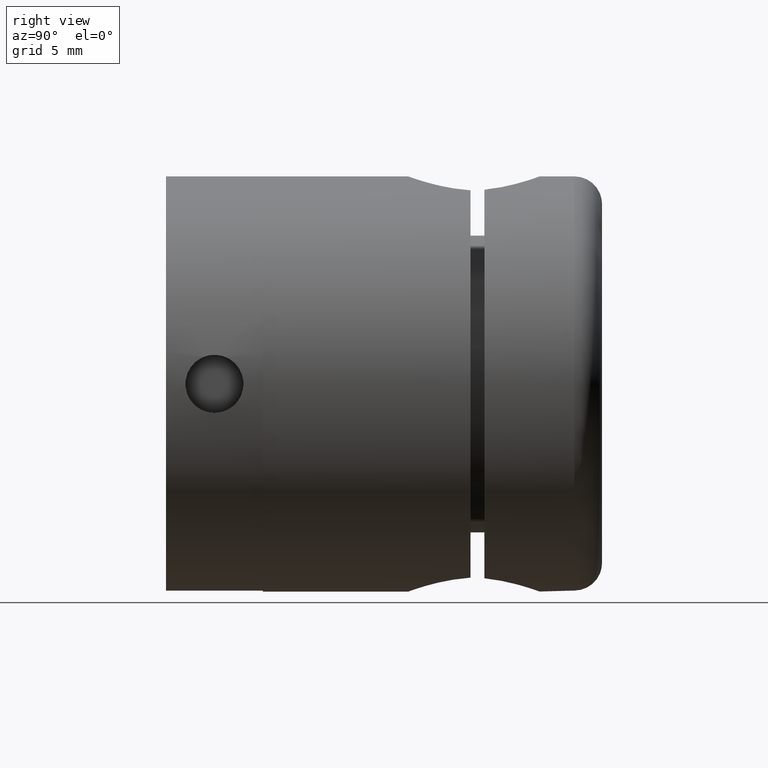
[diagram: clean part render]
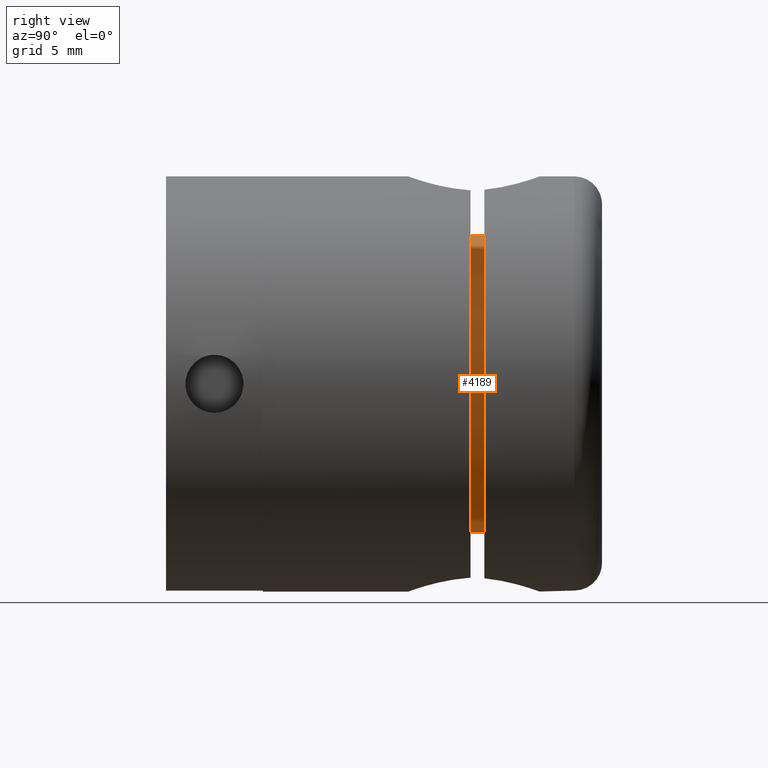
[diagram: same view with one face highlighted and labeled with its STEP entity id]
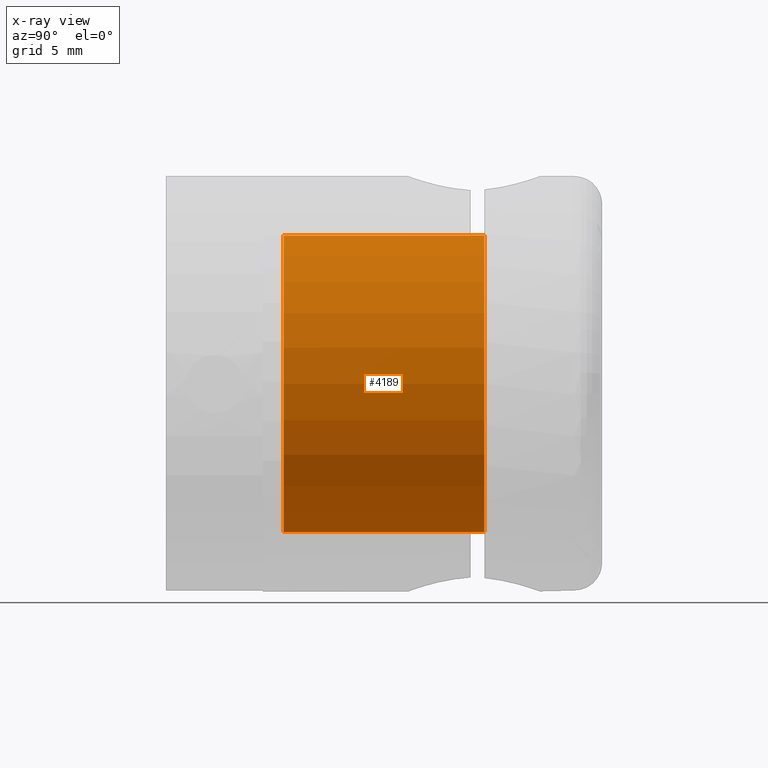
[diagram: x-ray of the same camera — body ghosted, the highlighted face saturated]
A machine part, right view. The second image highlights one B-rep face of the part: STEP entity #4189.
The next image is the same camera in x-ray: the body ghosted, the highlighted face saturated — about 0% of this face is hidden behind the body in this view.
In plain terms, the highlighted cylindrical surface (partial cylindrical patch) has radius 12.05 mm, axis along (-0, 1, 0).
Its self-contained STEP definition (entity closure, byte-faithful):
#166 = CARTESIAN_POINT ( 'NONE',  ( 5.499999999999999100, 24.50000000000000700, -10.72159036710506000 ) ) ;
#1019 = CYLINDRICAL_SURFACE ( 'NONE', #7034, 12.05000000000000100 ) ;
#1659 = VERTEX_POINT ( 'NONE', #11152 ) ;
#2071 = ORIENTED_EDGE ( 'NONE', *, *, #10617, .T. ) ;
#2279 = VERTEX_POINT ( 'NONE', #3941 ) ;
#2794 = CIRCLE ( 'NONE', #6835, 12.05000000000000100 ) ;
#3223 = DIRECTION ( 'NONE',  ( 0.0000000000000000000, 1.000000000000000000, 0.0000000000000000000 ) ) ;
#3478 = DIRECTION ( 'NONE',  ( -0.0000000000000000000, -1.000000000000000000, -0.0000000000000000000 ) ) ;
#3941 = CARTESIAN_POINT ( 'NONE',  ( 5.500000000000000900, 10.00000000000000000, 10.72159036710506000 ) ) ;
#4189 = ADVANCED_FACE ( 'NONE', ( #16816 ), #1019, .T. ) ;
#5064 = DIRECTION ( 'NONE',  ( 0.0000000000000000000, 0.0000000000000000000, -1.000000000000000000 ) ) ;
#5441 = LINE ( 'NONE', #7135, #12909 ) ;
#5533 = ORIENTED_EDGE ( 'NONE', *, *, #11455, .T. ) ;
#5771 = DIRECTION ( 'NONE',  ( 0.0000000000000000000, 1.000000000000000000, 0.0000000000000000000 ) ) ;
#6006 = VERTEX_POINT ( 'NONE', #15273 ) ;
#6357 = EDGE_CURVE ( 'NONE', #6006, #2279, #13795, .T. ) ;
#6641 = CARTESIAN_POINT ( 'NONE',  ( 5.500000000000000900, 25.50000000000000400, 10.72159036710506000 ) ) ;
#6835 = AXIS2_PLACEMENT_3D ( 'NONE', #8572, #5771, #13891 ) ;
#7034 = AXIS2_PLACEMENT_3D ( 'NONE', #10326, #3478, #5064 ) ;
#7135 = CARTESIAN_POINT ( 'NONE',  ( 5.499999999999999100, 25.50000000000000400, -10.72159036710506000 ) ) ;
#7290 = ORIENTED_EDGE ( 'NONE', *, *, #6357, .T. ) ;
#8132 = ORIENTED_EDGE ( 'NONE', *, *, #14645, .T. ) ;
#8491 = DIRECTION ( 'NONE',  ( 0.0000000000000000000, 0.0000000000000000000, 1.000000000000000000 ) ) ;
#8572 = CARTESIAN_POINT ( 'NONE',  ( 0.0000000000000000000, 10.00000000000000000, 0.0000000000000000000 ) ) ;
#9571 = VERTEX_POINT ( 'NONE', #166 ) ;
#9728 = AXIS2_PLACEMENT_3D ( 'NONE', #16319, #13826, #8491 ) ;
#9849 = VECTOR ( 'NONE', #14625, 1000.000000000000000 ) ;
#10326 = CARTESIAN_POINT ( 'NONE',  ( 0.0000000000000000000, 25.50000000000000400, 0.0000000000000000000 ) ) ;
#10617 = EDGE_CURVE ( 'NONE', #2279, #1659, #2794, .T. ) ;
#11152 = CARTESIAN_POINT ( 'NONE',  ( 5.499999999999999100, 10.00000000000000000, -10.72159036710506000 ) ) ;
#11455 = EDGE_CURVE ( 'NONE', #9571, #6006, #16883, .T. ) ;
#12652 = EDGE_LOOP ( 'NONE', ( #8132, #5533, #7290, #2071 ) ) ;
#12909 = VECTOR ( 'NONE', #3223, 1000.000000000000000 ) ;
#13795 = LINE ( 'NONE', #6641, #9849 ) ;
#13826 = DIRECTION ( 'NONE',  ( 0.0000000000000000000, -1.000000000000000000, 0.0000000000000000000 ) ) ;
#13891 = DIRECTION ( 'NONE',  ( 0.0000000000000000000, 0.0000000000000000000, 1.000000000000000000 ) ) ;
#14625 = DIRECTION ( 'NONE',  ( -0.0000000000000000000, -1.000000000000000000, -0.0000000000000000000 ) ) ;
#14645 = EDGE_CURVE ( 'NONE', #1659, #9571, #5441, .T. ) ;
#15273 = CARTESIAN_POINT ( 'NONE',  ( 5.500000000000000900, 24.50000000000000700, 10.72159036710506000 ) ) ;
#16319 = CARTESIAN_POINT ( 'NONE',  ( 0.0000000000000000000, 24.50000000000000700, 0.0000000000000000000 ) ) ;
#16816 = FACE_OUTER_BOUND ( 'NONE', #12652, .T. ) ;
#16883 = CIRCLE ( 'NONE', #9728, 12.05000000000000100 ) ;